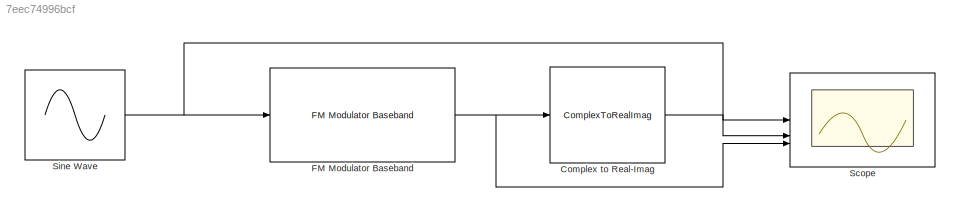
MODEL slx_7eec74996bcf
KIND model
CONFIG AbsTol = auto
CONFIG EnableMultiTasking = off
CONFIG FixedStep = auto
CONFIG MaxStep = auto
CONFIG MinStep = auto
CONFIG RelTol = 1e-3
CONFIG SampleTimeConstraint = Unconstrained
CONFIG SolverName = VariableStepAuto
CONFIG StartTime = 0.0
CONFIG StopTime = 1
BLOCK [ComplexToRealImag] Complex to Real-Imag
  Output = Real
BLOCK [Reference] FM Modulator Baseband  REF=commanabbnd3/FM
Modulator
Baseband
  SourceBlock = commanabbnd3/FM\nModulator\nBaseband
  SourceType = FM Modulator Baseband
BLOCK [Scope] Scope
  Floating = off
  NumInputPorts = 3
  ScopeSpecificationString = Simulink.scopes.TimeScopeBlockCfg('CurrentConfiguration', extmgr.ConfigurationSet(extmgr.Configuration('Core','General UI',true),extmgr.Configuration('Core','Source UI',true),extmgr.Configuration('Sources','WiredSimulink',true),extmgr.Configuration('Visuals','Time Domain',true,'SerializedDisplays',{struct('MinYLimReal','-1.25','MaxYLimReal','1.25','YLabelReal','','MinYLimMag','0.00000','MaxYLimMag...<+2707ch>
BLOCK [Sin] Sine Wave
  Frequency = 20*pi
  SampleTime = 0.00001
LINE Complex to Real-Imag:1 -> Scope:2
NET FM Modulator Baseband:1 -> Complex to Real-Imag:1, Scope:3
NET Sine Wave:1 -> FM Modulator Baseband:1, Scope:1
note: NET lines group one-source signal fan-out (src -> all destinations, sorted); 1:1 wires keep LINE
